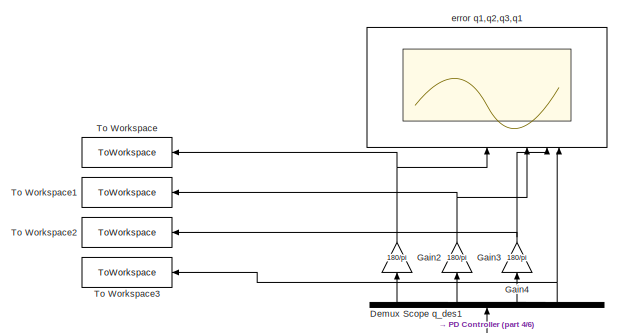
[diagram: root canvas - part 1/6, top center region]
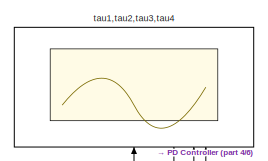
[diagram: root canvas - part 2/6, top right region]
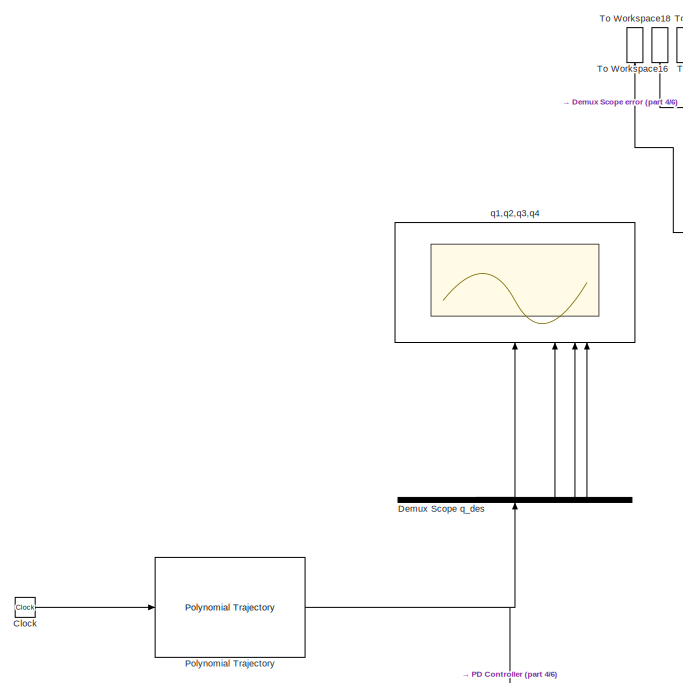
[diagram: root canvas - part 3/6, middle left region]
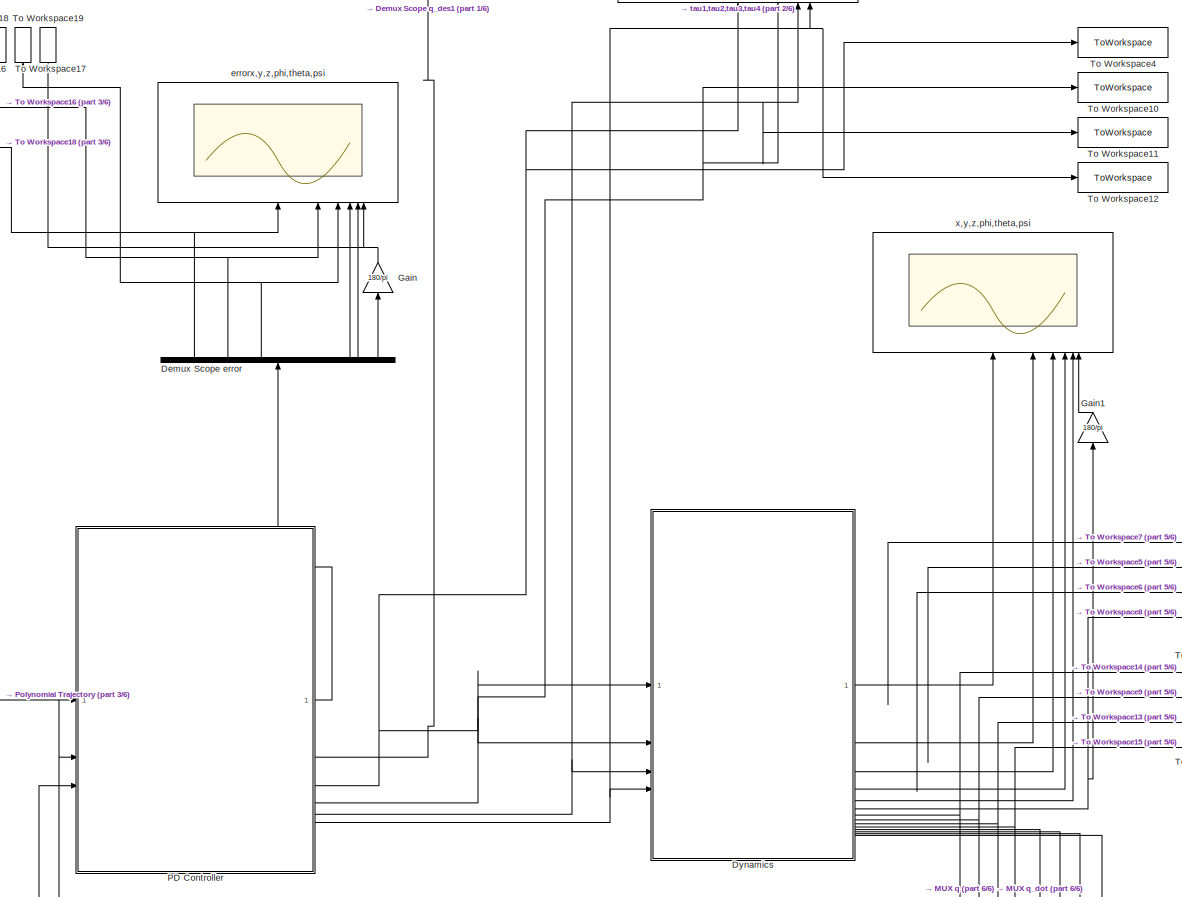
[diagram: root canvas - part 4/6, central region]
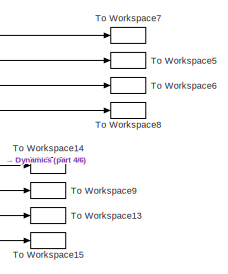
[diagram: root canvas - part 5/6, middle right region]
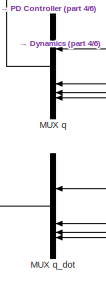
[diagram: root canvas - part 6/6, bottom center region]
MODEL slx_671fea496437
KIND model
CONFIG AbsTol = auto
CONFIG EnableMultiTasking = off
CONFIG FixedStep = auto
CONFIG MaxStep = auto
CONFIG MinStep = auto
CONFIG RelTol = 1e-3
CONFIG SampleTimeConstraint = Unconstrained
CONFIG SolverName = VariableStepAuto
CONFIG StartTime = 0.0
CONFIG StopTime = times_way(end)
BLOCK [Clock] Clock
BLOCK [Demux] Demux Scope error
  NameLocation = right
  Outputs = 6
BLOCK [Demux] Demux Scope q_des
  NameLocation = right
BLOCK [Demux] Demux Scope q_des1
  NameLocation = right
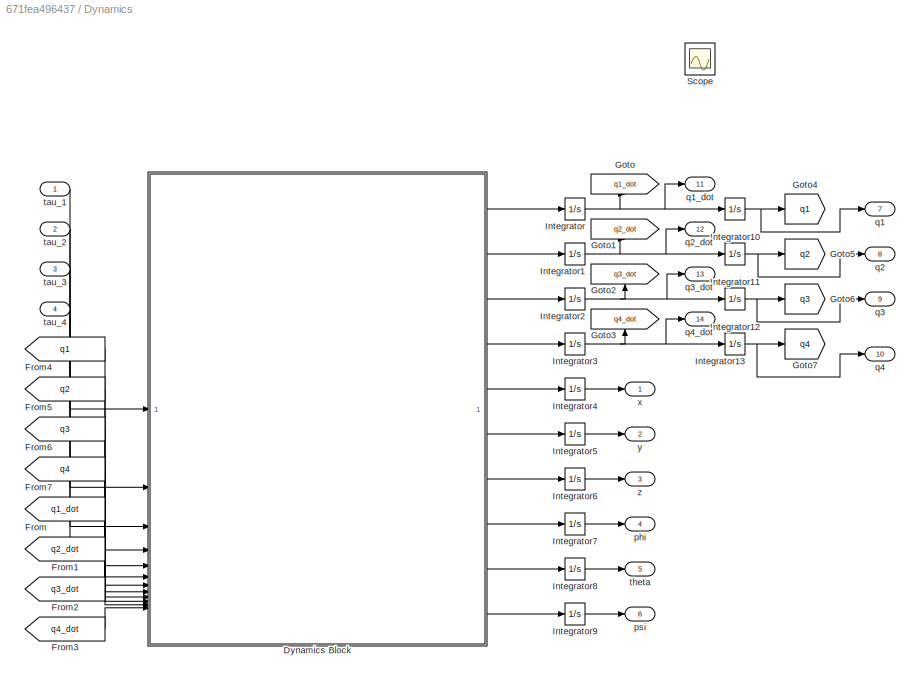
BLOCK [SubSystem] Dynamics
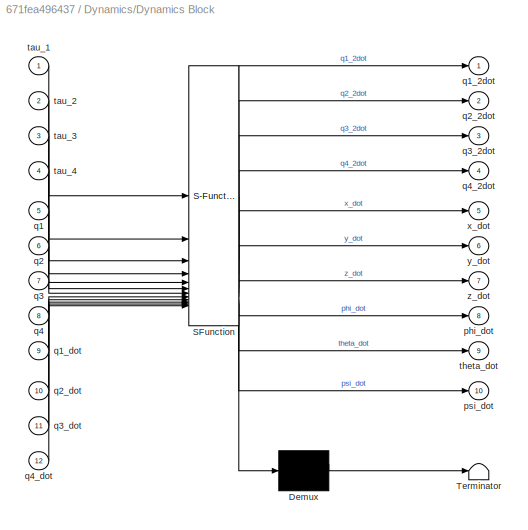
BLOCK [SubSystem] Dynamics/Dynamics Block
  ErrorFcn = Stateflow.Translate.translate
  LibrarySourceBlock = simulink/User-Defined\nFunctions/MATLAB Function
  PermitHierarchicalResolution = ExplicitOnly
  SFBlockType = MATLAB Function
  TreatAsAtomicUnit = on
BLOCK [Demux] Dynamics/Dynamics Block/ Demux 
  Outputs = 1
BLOCK [S-Function] Dynamics/Dynamics Block/ SFunction 
  EnableBusSupport = on
  FunctionName = sf_sfun
  PortCounts = [12 11]
  SFcnIsStateOwnerBlock = off
  SFunctionDeploymentMode = off
  Tag = Stateflow S-Function 2
BLOCK [Terminator] Dynamics/Dynamics Block/ Terminator 
BLOCK [Outport] Dynamics/Dynamics Block/phi_dot
  Port = 8
BLOCK [Outport] Dynamics/Dynamics Block/psi_dot
  Port = 10
BLOCK [Inport] Dynamics/Dynamics Block/q1
  Port = 5
BLOCK [Outport] Dynamics/Dynamics Block/q1_2dot
BLOCK [Inport] Dynamics/Dynamics Block/q1_dot
  Port = 9
BLOCK [Inport] Dynamics/Dynamics Block/q2
  Port = 6
BLOCK [Outport] Dynamics/Dynamics Block/q2_2dot
  Port = 2
BLOCK [Inport] Dynamics/Dynamics Block/q2_dot
  Port = 10
BLOCK [Inport] Dynamics/Dynamics Block/q3
  Port = 7
BLOCK [Outport] Dynamics/Dynamics Block/q3_2dot
  Port = 3
BLOCK [Inport] Dynamics/Dynamics Block/q3_dot
  Port = 11
BLOCK [Inport] Dynamics/Dynamics Block/q4
  Port = 8
BLOCK [Outport] Dynamics/Dynamics Block/q4_2dot
  Port = 4
BLOCK [Inport] Dynamics/Dynamics Block/q4_dot
  Port = 12
BLOCK [Inport] Dynamics/Dynamics Block/tau_1
BLOCK [Inport] Dynamics/Dynamics Block/tau_2
  Port = 2
BLOCK [Inport] Dynamics/Dynamics Block/tau_3
  Port = 3
BLOCK [Inport] Dynamics/Dynamics Block/tau_4
  Port = 4
BLOCK [Outport] Dynamics/Dynamics Block/theta_dot
  Port = 9
BLOCK [Outport] Dynamics/Dynamics Block/x_dot
  Port = 5
BLOCK [Outport] Dynamics/Dynamics Block/y_dot
  Port = 6
BLOCK [Outport] Dynamics/Dynamics Block/z_dot
  Port = 7
BLOCK [From] Dynamics/From
  GotoTag = q1_dot
BLOCK [From] Dynamics/From1
  GotoTag = q2_dot
BLOCK [From] Dynamics/From2
  GotoTag = q3_dot
BLOCK [From] Dynamics/From3
  GotoTag = q4_dot
BLOCK [From] Dynamics/From4
  GotoTag = q1
BLOCK [From] Dynamics/From5
  GotoTag = q2
BLOCK [From] Dynamics/From6
  GotoTag = q3
BLOCK [From] Dynamics/From7
  GotoTag = q4
BLOCK [Goto] Dynamics/Goto
  GotoTag = q1_dot
  NameLocation = right
BLOCK [Goto] Dynamics/Goto1
  GotoTag = q2_dot
  NameLocation = right
BLOCK [Goto] Dynamics/Goto2
  GotoTag = q3_dot
  NameLocation = right
BLOCK [Goto] Dynamics/Goto3
  GotoTag = q4_dot
  NameLocation = right
BLOCK [Goto] Dynamics/Goto4
  GotoTag = q1
BLOCK [Goto] Dynamics/Goto5
  GotoTag = q2
BLOCK [Goto] Dynamics/Goto6
  GotoTag = q3
BLOCK [Goto] Dynamics/Goto7
  GotoTag = q4
BLOCK [Integrator] Dynamics/Integrator
  InitialCondition = q1_dot_0
BLOCK [Integrator] Dynamics/Integrator1
  InitialCondition = q2_dot_0
BLOCK [Integrator] Dynamics/Integrator10
  InitialCondition = q1_0
  WrapState = on
BLOCK [Integrator] Dynamics/Integrator11
  InitialCondition = q2_0
  WrapState = on
BLOCK [Integrator] Dynamics/Integrator12
  InitialCondition = q3_0
  WrapState = on
BLOCK [Integrator] Dynamics/Integrator13
  InitialCondition = q4_0
BLOCK [Integrator] Dynamics/Integrator2
  InitialCondition = q3_dot_0
BLOCK [Integrator] Dynamics/Integrator3
  InitialCondition = q4_dot_0
BLOCK [Integrator] Dynamics/Integrator4
  InitialCondition = x_0
BLOCK [Integrator] Dynamics/Integrator5
  InitialCondition = y_0
BLOCK [Integrator] Dynamics/Integrator6
  InitialCondition = z_0
BLOCK [Integrator] Dynamics/Integrator7
  InitialCondition = phi_0
BLOCK [Integrator] Dynamics/Integrator8
  InitialCondition = theta_0
BLOCK [Integrator] Dynamics/Integrator9
  InitialCondition = psi_0
BLOCK [Scope] Dynamics/Scope
  Floating = off
  NumInputPorts = 4
  ScopeSpecificationString = Simulink.scopes.TimeScopeBlockCfg('CurrentConfiguration', extmgr.ConfigurationSet(extmgr.Configuration('Core','General UI',true),extmgr.Configuration('Core','Source UI',true),extmgr.Configuration('Sources','WiredSimulink',true,'DataLoggingVariableName','ScopeData3'),extmgr.Configuration('Visuals','Time Domain',true,'SerializedDisplays',{struct('MinYLimReal','-1.00000','MaxYLimReal','1.00000','YLab...<+3593ch>
BLOCK [Outport] Dynamics/phi
  Port = 4
BLOCK [Outport] Dynamics/psi
  Port = 6
BLOCK [Outport] Dynamics/q1
  Port = 7
BLOCK [Outport] Dynamics/q1_dot
  Port = 11
BLOCK [Outport] Dynamics/q2
  Port = 8
BLOCK [Outport] Dynamics/q2_dot
  Port = 12
BLOCK [Outport] Dynamics/q3
  Port = 9
BLOCK [Outport] Dynamics/q3_dot
  Port = 13
BLOCK [Outport] Dynamics/q4
  Port = 10
BLOCK [Outport] Dynamics/q4_dot
  Port = 14
BLOCK [Inport] Dynamics/tau_1
BLOCK [Inport] Dynamics/tau_2
  Port = 2
BLOCK [Inport] Dynamics/tau_3
  Port = 3
BLOCK [Inport] Dynamics/tau_4
  Port = 4
BLOCK [Outport] Dynamics/theta
  Port = 5
BLOCK [Outport] Dynamics/x
BLOCK [Outport] Dynamics/y
  Port = 2
BLOCK [Outport] Dynamics/z
  Port = 3
BLOCK [Gain] Gain
  Gain = 180/pi
  NameLocation = right
BLOCK [Gain] Gain1
  Gain = 180/pi
  NameLocation = right
BLOCK [Gain] Gain2
  Gain = 180/pi
  NameLocation = right
BLOCK [Gain] Gain3
  Gain = 180/pi
  NameLocation = right
BLOCK [Gain] Gain4
  Gain = 180/pi
  NameLocation = right
BLOCK [Mux] MUX q
  DisplayOption = bar
  NameLocation = top
BLOCK [Mux] MUX q_dot
  DisplayOption = bar
  NameLocation = top
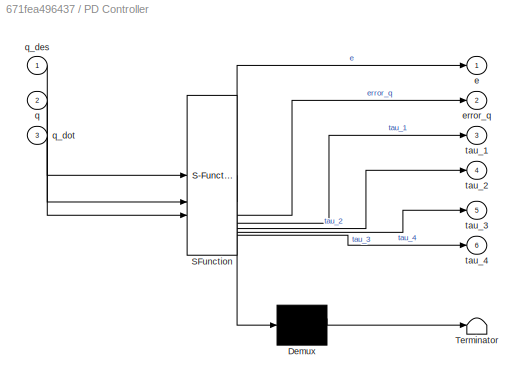
BLOCK [SubSystem] PD Controller
  ErrorFcn = Stateflow.Translate.translate
  LibrarySourceBlock = simulink/User-Defined\nFunctions/MATLAB Function
  PermitHierarchicalResolution = ExplicitOnly
  SFBlockType = MATLAB Function
  TreatAsAtomicUnit = on
BLOCK [Demux] PD Controller/ Demux 
  Outputs = 1
BLOCK [S-Function] PD Controller/ SFunction 
  EnableBusSupport = on
  FunctionName = sf_sfun
  PortCounts = [3 7]
  SFcnIsStateOwnerBlock = off
  SFunctionDeploymentMode = off
  Tag = Stateflow S-Function 1
BLOCK [Terminator] PD Controller/ Terminator 
BLOCK [Outport] PD Controller/e
BLOCK [Outport] PD Controller/error_q
  Port = 2
BLOCK [Inport] PD Controller/q
  Port = 2
BLOCK [Inport] PD Controller/q_des
BLOCK [Inport] PD Controller/q_dot
  Port = 3
BLOCK [Outport] PD Controller/tau_1
  Port = 3
BLOCK [Outport] PD Controller/tau_2
  Port = 4
BLOCK [Outport] PD Controller/tau_3
  Port = 5
BLOCK [Outport] PD Controller/tau_4
  Port = 6
BLOCK [Reference] Polynomial Trajectory  REF=robotcorelib/Polynomial Trajectory
  LibrarySourceBlock = robotutilslib/Polynomial Trajectory
  SourceBlock = robotcorelib/Polynomial Trajectory
  SourceType = robotics.slcore.internal.block.PolyTrajSys
BLOCK [ToWorkspace] To Workspace
  FixptAsFi = on
  MaxDataPoints = inf
  NameLocation = top
  SampleTime = dt_animation
  VariableName = q1_error
BLOCK [ToWorkspace] To Workspace1
  FixptAsFi = on
  MaxDataPoints = inf
  NameLocation = top
  SampleTime = dt_animation
  VariableName = q2_error
BLOCK [ToWorkspace] To Workspace10
  FixptAsFi = on
  MaxDataPoints = inf
  SampleTime = dt_animation
  VariableName = tau2
BLOCK [ToWorkspace] To Workspace11
  FixptAsFi = on
  MaxDataPoints = inf
  SampleTime = dt_animation
  VariableName = tau3
BLOCK [ToWorkspace] To Workspace12
  FixptAsFi = on
  MaxDataPoints = inf
  SampleTime = dt_animation
  VariableName = tau4
BLOCK [ToWorkspace] To Workspace13
  FixptAsFi = on
  MaxDataPoints = inf
  NameLocation = right
  SampleTime = dt_animation
  VariableName = q3
BLOCK [ToWorkspace] To Workspace14
  FixptAsFi = on
  MaxDataPoints = inf
  SampleTime = dt_animation
  VariableName = q1
BLOCK [ToWorkspace] To Workspace15
  FixptAsFi = on
  MaxDataPoints = inf
  SampleTime = dt_animation
  VariableName = q4
BLOCK [ToWorkspace] To Workspace16
  FixptAsFi = on
  MaxDataPoints = inf
  NameLocation = right
  SampleTime = dt_animation
  VariableName = error_y
BLOCK [ToWorkspace] To Workspace17
  FixptAsFi = on
  MaxDataPoints = inf
  NameLocation = right
  SampleTime = dt_animation
  VariableName = error_z
BLOCK [ToWorkspace] To Workspace18
  FixptAsFi = on
  MaxDataPoints = inf
  NameLocation = right
  SampleTime = dt_animation
  VariableName = error_x
BLOCK [ToWorkspace] To Workspace19
  FixptAsFi = on
  MaxDataPoints = inf
  NameLocation = right
  SampleTime = dt_animation
  VariableName = error_psi
BLOCK [ToWorkspace] To Workspace2
  FixptAsFi = on
  MaxDataPoints = inf
  NameLocation = top
  SampleTime = dt_animation
  VariableName = q3_error
BLOCK [ToWorkspace] To Workspace3
  FixptAsFi = on
  MaxDataPoints = inf
  NameLocation = top
  SampleTime = dt_animation
  VariableName = q4_error
BLOCK [ToWorkspace] To Workspace4
  FixptAsFi = on
  MaxDataPoints = inf
  SampleTime = dt_animation
  VariableName = tau1
BLOCK [ToWorkspace] To Workspace5
  FixptAsFi = on
  MaxDataPoints = inf
  SampleTime = dt_animation
  VariableName = y
BLOCK [ToWorkspace] To Workspace6
  FixptAsFi = on
  MaxDataPoints = inf
  SampleTime = dt_animation
  VariableName = z
BLOCK [ToWorkspace] To Workspace7
  FixptAsFi = on
  MaxDataPoints = inf
  SampleTime = dt_animation
  VariableName = x
BLOCK [ToWorkspace] To Workspace8
  FixptAsFi = on
  MaxDataPoints = inf
  SampleTime = dt_animation
  VariableName = psi
BLOCK [ToWorkspace] To Workspace9
  FixptAsFi = on
  MaxDataPoints = inf
  SampleTime = dt_animation
  VariableName = q2
BLOCK [Scope] error q1,q2,q3,q1
  Floating = off
  NameLocation = right
  NumInputPorts = 4
  ScopeSpecificationString = Simulink.scopes.TimeScopeBlockCfg('CurrentConfiguration', extmgr.ConfigurationSet(extmgr.Configuration('Core','General UI',true),extmgr.Configuration('Core','Source UI',true),extmgr.Configuration('Sources','WiredSimulink',true,'DataLoggingVariableName','ScopeData1'),extmgr.Configuration('Visuals','Time Domain',true,'SerializedDisplays',{struct('MinYLimReal','-34.34496','MaxYLimReal','32.43087','YL...<+3318ch>
BLOCK [Scope] errorx,y,z,phi,theta,psi
  Floating = off
  NameLocation = right
  NumInputPorts = 6
  ScopeSpecificationString = Simulink.scopes.TimeScopeBlockCfg('CurrentConfiguration', extmgr.ConfigurationSet(extmgr.Configuration('Core','General UI',true),extmgr.Configuration('Core','Source UI',true),extmgr.Configuration('Sources','WiredSimulink',true,'DataLoggingVariableName','ScopeData1'),extmgr.Configuration('Visuals','Time Domain',true,'SerializedDisplays',{struct('MinYLimReal','-0.07651','MaxYLimReal','0.05688','YLab...<+4796ch>
BLOCK [Scope] q1,q2,q3,q4
  Floating = off
  NameLocation = right
  NumInputPorts = 4
  ScopeSpecificationString = Simulink.scopes.TimeScopeBlockCfg('CurrentConfiguration', extmgr.ConfigurationSet(extmgr.Configuration('Core','General UI',true),extmgr.Configuration('Core','Source UI',true),extmgr.Configuration('Sources','WiredSimulink',true),extmgr.Configuration('Visuals','Time Domain',true,'SerializedDisplays',{struct('MinYLimReal','-0.47598','MaxYLimReal','2.07851','YLabelReal','','MinYLimMag','0.00000','MaxY...<+3313ch>
BLOCK [Scope] tau1,tau2,tau3,tau4
  Floating = off
  NameLocation = right
  NumInputPorts = 4
  ScopeSpecificationString = Simulink.scopes.TimeScopeBlockCfg('CurrentConfiguration', extmgr.ConfigurationSet(extmgr.Configuration('Core','General UI',true),extmgr.Configuration('Core','Source UI',true),extmgr.Configuration('Sources','WiredSimulink',true,'DataLoggingVariableName','ScopeData4'),extmgr.Configuration('Visuals','Time Domain',true,'SerializedDisplays',{struct('MinYLimReal','-0.14338','MaxYLimReal','0.16159','YLab...<+3359ch>
BLOCK [Scope] x,y,z,phi,theta,psi
  Floating = off
  NameLocation = right
  NumInputPorts = 6
  ScopeSpecificationString = Simulink.scopes.TimeScopeBlockCfg('CurrentConfiguration', extmgr.ConfigurationSet(extmgr.Configuration('Core','General UI',true),extmgr.Configuration('Core','Source UI',true),extmgr.Configuration('Sources','WiredSimulink',true,'DataLoggingVariableName','ScopeData2'),extmgr.Configuration('Visuals','Time Domain',true,'SerializedDisplays',{struct('MinYLimReal','0.25012','MaxYLimReal','0.35125','YLabe...<+4765ch>
LINE Clock:1 -> Polynomial Trajectory:1
NET Demux Scope error:1 -> To Workspace18:1, errorx,y,z,phi,theta,psi:1
NET Demux Scope error:2 -> To Workspace16:1, errorx,y,z,phi,theta,psi:2
NET Demux Scope error:3 -> To Workspace17:1, errorx,y,z,phi,theta,psi:3
LINE Demux Scope error:4 -> errorx,y,z,phi,theta,psi:4
LINE Demux Scope error:5 -> errorx,y,z,phi,theta,psi:5
LINE Demux Scope error:6 -> Gain:1
LINE Demux Scope q_des1:1 -> Gain2:1
LINE Demux Scope q_des1:2 -> Gain3:1
LINE Demux Scope q_des1:3 -> Gain4:1
NET Demux Scope q_des1:4 -> To Workspace3:1, error q1,q2,q3,q1:4
LINE Demux Scope q_des:1 -> q1,q2,q3,q4:1
LINE Demux Scope q_des:2 -> q1,q2,q3,q4:2
LINE Demux Scope q_des:3 -> q1,q2,q3,q4:3
LINE Demux Scope q_des:4 -> q1,q2,q3,q4:4
LINE Dynamics/Dynamics Block:1 -> Dynamics/Integrator:1
LINE Dynamics/Dynamics Block:10 -> Dynamics/Integrator9:1
LINE Dynamics/Dynamics Block:2 -> Dynamics/Integrator1:1
LINE Dynamics/Dynamics Block:3 -> Dynamics/Integrator2:1
LINE Dynamics/Dynamics Block:4 -> Dynamics/Integrator3:1
LINE Dynamics/Dynamics Block:5 -> Dynamics/Integrator4:1
LINE Dynamics/Dynamics Block:6 -> Dynamics/Integrator5:1
LINE Dynamics/Dynamics Block:7 -> Dynamics/Integrator6:1
LINE Dynamics/Dynamics Block:8 -> Dynamics/Integrator7:1
LINE Dynamics/Dynamics Block:9 -> Dynamics/Integrator8:1
LINE Dynamics/From1:1 -> Dynamics/Dynamics Block:10
LINE Dynamics/From2:1 -> Dynamics/Dynamics Block:11
LINE Dynamics/From3:1 -> Dynamics/Dynamics Block:12
LINE Dynamics/From4:1 -> Dynamics/Dynamics Block:5
LINE Dynamics/From5:1 -> Dynamics/Dynamics Block:6
LINE Dynamics/From6:1 -> Dynamics/Dynamics Block:7
LINE Dynamics/From7:1 -> Dynamics/Dynamics Block:8
LINE Dynamics/From:1 -> Dynamics/Dynamics Block:9
NET Dynamics/Integrator10:1 -> Dynamics/Goto4:1, Dynamics/q1:1
NET Dynamics/Integrator11:1 -> Dynamics/Goto5:1, Dynamics/q2:1
NET Dynamics/Integrator12:1 -> Dynamics/Goto6:1, Dynamics/q3:1
NET Dynamics/Integrator13:1 -> Dynamics/Goto7:1, Dynamics/q4:1
NET Dynamics/Integrator1:1 -> Dynamics/Goto1:1, Dynamics/Integrator11:1, Dynamics/q2_dot:1
NET Dynamics/Integrator2:1 -> Dynamics/Goto2:1, Dynamics/Integrator12:1, Dynamics/q3_dot:1
NET Dynamics/Integrator3:1 -> Dynamics/Goto3:1, Dynamics/Integrator13:1, Dynamics/q4_dot:1
LINE Dynamics/Integrator4:1 -> Dynamics/x:1
LINE Dynamics/Integrator5:1 -> Dynamics/y:1
LINE Dynamics/Integrator6:1 -> Dynamics/z:1
LINE Dynamics/Integrator7:1 -> Dynamics/phi:1
LINE Dynamics/Integrator8:1 -> Dynamics/theta:1
LINE Dynamics/Integrator9:1 -> Dynamics/psi:1
NET Dynamics/Integrator:1 -> Dynamics/Goto:1, Dynamics/Integrator10:1, Dynamics/q1_dot:1
LINE Dynamics/tau_1:1 -> Dynamics/Dynamics Block:1
LINE Dynamics/tau_2:1 -> Dynamics/Dynamics Block:2
LINE Dynamics/tau_3:1 -> Dynamics/Dynamics Block:3
LINE Dynamics/tau_4:1 -> Dynamics/Dynamics Block:4
NET Dynamics:1 -> To Workspace7:1, x,y,z,phi,theta,psi:1
NET Dynamics:10 -> MUX q:4, To Workspace15:1
LINE Dynamics:11 -> MUX q_dot:1
LINE Dynamics:12 -> MUX q_dot:2
LINE Dynamics:13 -> MUX q_dot:3
LINE Dynamics:14 -> MUX q_dot:4
NET Dynamics:2 -> To Workspace5:1, x,y,z,phi,theta,psi:2
NET Dynamics:3 -> To Workspace6:1, x,y,z,phi,theta,psi:3
LINE Dynamics:4 -> x,y,z,phi,theta,psi:4
LINE Dynamics:5 -> x,y,z,phi,theta,psi:5
NET Dynamics:6 -> Gain1:1, To Workspace8:1
NET Dynamics:7 -> MUX q:1, To Workspace14:1
NET Dynamics:8 -> MUX q:2, To Workspace9:1
NET Dynamics:9 -> MUX q:3, To Workspace13:1
LINE Gain1:1 -> x,y,z,phi,theta,psi:6
NET Gain2:1 -> To Workspace:1, error q1,q2,q3,q1:1
NET Gain3:1 -> To Workspace1:1, error q1,q2,q3,q1:2
NET Gain4:1 -> To Workspace2:1, error q1,q2,q3,q1:3
NET Gain:1 -> To Workspace19:1, errorx,y,z,phi,theta,psi:6
LINE MUX q:1 -> PD Controller:2
LINE MUX q_dot:1 -> PD Controller:3
LINE PD Controller:1 -> Demux Scope error:1
LINE PD Controller:2 -> Demux Scope q_des1:1
NET PD Controller:3 -> Dynamics:1, To Workspace4:1, tau1,tau2,tau3,tau4:1
NET PD Controller:4 -> Dynamics:2, To Workspace10:1, tau1,tau2,tau3,tau4:2
NET PD Controller:5 -> Dynamics:3, To Workspace11:1, tau1,tau2,tau3,tau4:3
NET PD Controller:6 -> Dynamics:4, To Workspace12:1, tau1,tau2,tau3,tau4:4
NET Polynomial Trajectory:1 -> Demux Scope q_des:1, PD Controller:1
note: NET lines group one-source signal fan-out (src -> all destinations, sorted); 1:1 wires keep LINE
CHART PD Controller states=1 transitions=1
  STATE_LABEL 'eML_blk_kernel()'
  STATE_LABEL 'SCRIPT:\nfunction [e,error_q,tau_1,tau_2,tau_3,tau_4] = PD(q_des,q,q_dot)\n\n\n% masses\n\nm1 = 20; % [kg]\nm2 = 15; % [kg]\nm3 = 15; % [kg]\nm4 = 0.5; % [kg]\n\n% link length\n\nl0 = 0; % [m]\nl1 = 0.2; % [m]\nl2 = 0.25; % [m]\n\n% lenght joint to COM\n\nr1 = 0.1; % [m]\nr2 = 0.125; % [m]\n\n% inertia\n\nIz1 = 0.27; % [kg*m^2]\nIz2 = 0.31; % [kg*m^2]\nIz3 = 0.02; % [kg*m^2]\nIz4 = 0.0001; % [kg*m^2]\n\ng = 9.81;\n\nG = [0; \n  ...<+1393ch>'
CHART Dynamics/Dynamics Block states=1 transitions=1
  STATE_LABEL 'eML_blk_kernel()'
  STATE_LABEL 'SCRIPT:\nfunction [q1_2dot, q2_2dot, q3_2dot, q4_2dot, x_dot,y_dot,z_dot,phi_dot,theta_dot,psi_dot] = Dynamics(tau_1,tau_2,tau_3,tau_4, q1,q2,q3,q4,q1_dot,q2_dot,q3_dot,q4_dot)\n\n% Dynamic Model --> tau = M(q)*q_2dot + C(q,q_dot)*q_dot + G(q)\n%\n%% Parameters Definition\n\n% masses\n\nm1 = 20; % [kg]\nm2 = 15; % [kg]\nm3 = 15; % [kg]\nm4 = 0.5; % [kg]\n\n% link length\n\nl0 = 0; % [m]\nl1 = 0.2; % [m]\nl2 = 0.25;...<+1738ch>'
CHART  states=0 transitions=0
CHART  states=0 transitions=0
